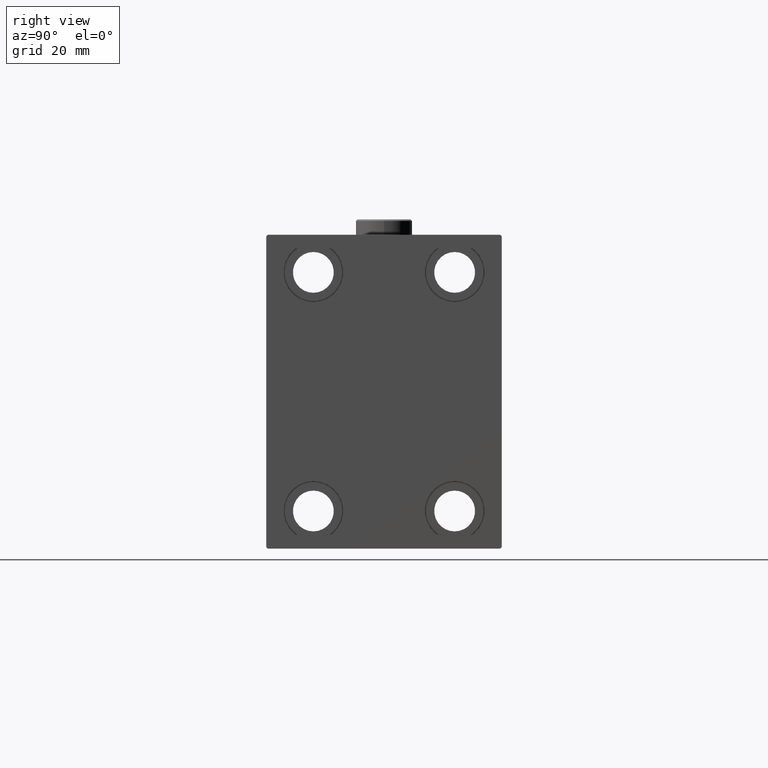
[diagram: clean part render]
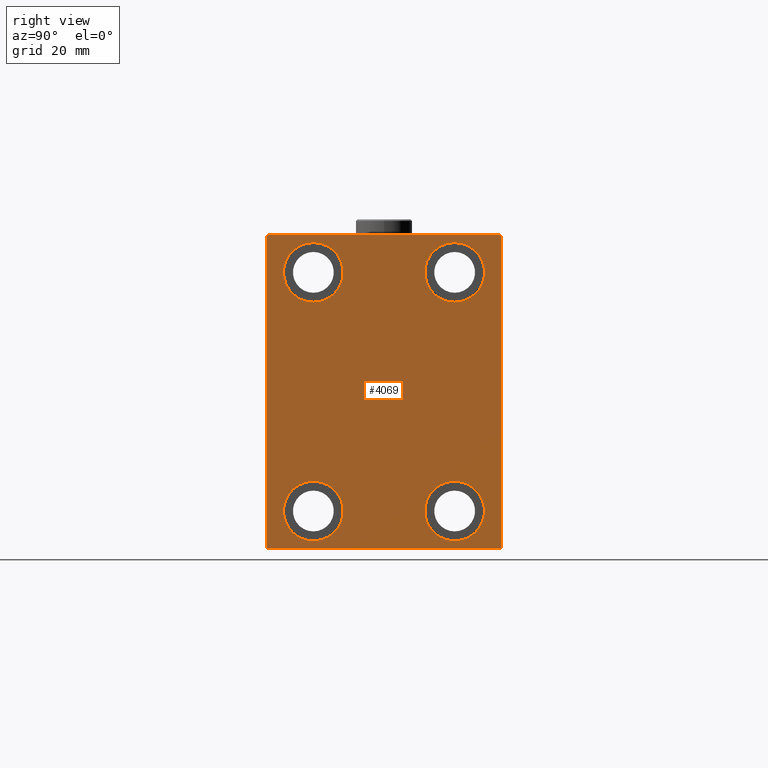
[diagram: same view with one face highlighted and labeled with its STEP entity id]
A machine part, right view. The second image highlights one B-rep face of the part: STEP entity #4069.
In plain terms, the highlighted planar face has unit normal (1, 0, 0).
Its self-contained STEP definition (entity closure, byte-faithful):
#128 = EDGE_CURVE ( 'NONE', #29008, #43041, #46919, .T. ) ;
#244 = CARTESIAN_POINT ( 'NONE',  ( 98.00000000000000000, 37.49999999999999289, 50.00000000000000711 ) ) ;
#664 = CARTESIAN_POINT ( 'NONE',  ( 98.00000000000000000, 22.50000000000000355, 28.49999999999998934 ) ) ;
#739 = VERTEX_POINT ( 'NONE', #2795 ) ;
#882 = AXIS2_PLACEMENT_3D ( 'NONE', #44903, #20198, #42136 ) ;
#1174 = ORIENTED_EDGE ( 'NONE', *, *, #28732, .T. ) ;
#1237 = VERTEX_POINT ( 'NONE', #15532 ) ;
#1420 = VECTOR ( 'NONE', #26683, 1000.000000000000000 ) ;
#1691 = LINE ( 'NONE', #4402, #5520 ) ;
#1741 = DIRECTION ( 'NONE',  ( -1.000000000000000000, -0.000000000000000000, -0.000000000000000000 ) ) ;
#2293 = EDGE_CURVE ( 'NONE', #48159, #23171, #11941, .T. ) ;
#2633 = DIRECTION ( 'NONE',  ( -0.000000000000000000, 0.7071067811865474617, 0.7071067811865474617 ) ) ;
#2655 = LINE ( 'NONE', #10679, #40913 ) ;
#2795 = CARTESIAN_POINT ( 'NONE',  ( 98.00000000000000000, 22.50000000000000355, 47.49999999999999289 ) ) ;
#3140 = EDGE_CURVE ( 'NONE', #43041, #29008, #38434, .T. ) ;
#3484 = AXIS2_PLACEMENT_3D ( 'NONE', #37922, #19168, #44996 ) ;
#3808 = VERTEX_POINT ( 'NONE', #24890 ) ;
#3815 = CARTESIAN_POINT ( 'NONE',  ( 98.00000000000000000, 22.50000000000000355, 37.99999999999999289 ) ) ;
#4069 = ADVANCED_FACE ( 'NONE', ( #4562, #30349, #15279, #40855, #23277 ), #41098, .T. ) ;
#4402 = CARTESIAN_POINT ( 'NONE',  ( 98.00000000000000000, -43.49999999999998579, 43.49999999999998579 ) ) ;
#4412 = EDGE_LOOP ( 'NONE', ( #44964, #32416 ) ) ;
#4562 = FACE_BOUND ( 'NONE', #19983, .T. ) ;
#5520 = VECTOR ( 'NONE', #11925, 1000.000000000000114 ) ;
#5964 = ORIENTED_EDGE ( 'NONE', *, *, #32897, .T. ) ;
#6424 = AXIS2_PLACEMENT_3D ( 'NONE', #10150, #17201, #11047 ) ;
#6807 = CARTESIAN_POINT ( 'NONE',  ( 98.00000000000000000, -22.50000000000000711, -47.49999999999999289 ) ) ;
#7962 = DIRECTION ( 'NONE',  ( 0.000000000000000000, 0.000000000000000000, 1.000000000000000000 ) ) ;
#9378 = VERTEX_POINT ( 'NONE', #16987 ) ;
#10150 = CARTESIAN_POINT ( 'NONE',  ( 98.00000000000000000, 22.50000000000000355, 37.99999999999999289 ) ) ;
#10391 = CARTESIAN_POINT ( 'NONE',  ( 98.00000000000000000, 37.50000000000000711, -50.00000000000000000 ) ) ;
#10600 = AXIS2_PLACEMENT_3D ( 'NONE', #16827, #1741, #34854 ) ;
#10679 = CARTESIAN_POINT ( 'NONE',  ( 98.00000000000000000, -37.50000000000000711, -50.00000000000000711 ) ) ;
#11047 = DIRECTION ( 'NONE',  ( 0.000000000000000000, 0.000000000000000000, 1.000000000000000000 ) ) ;
#11588 = CARTESIAN_POINT ( 'NONE',  ( 98.00000000000000000, 22.49999999999999645, -28.49999999999998934 ) ) ;
#11925 = DIRECTION ( 'NONE',  ( 0.000000000000000000, -0.7071067811865474617, -0.7071067811865474617 ) ) ;
#11941 = CIRCLE ( 'NONE', #15039, 9.500000000000001776 ) ;
#12075 = CARTESIAN_POINT ( 'NONE',  ( 98.00000000000000000, 22.49999999999999645, -37.99999999999999289 ) ) ;
#12117 = VERTEX_POINT ( 'NONE', #16469 ) ;
#13047 = EDGE_CURVE ( 'NONE', #739, #25322, #43632, .T. ) ;
#14103 = LINE ( 'NONE', #244, #1420 ) ;
#15039 = AXIS2_PLACEMENT_3D ( 'NONE', #12075, #34474, #31522 ) ;
#15279 = FACE_BOUND ( 'NONE', #4412, .T. ) ;
#15532 = CARTESIAN_POINT ( 'NONE',  ( 98.00000000000000000, 37.50000000000000711, -49.50000000000000000 ) ) ;
#16469 = CARTESIAN_POINT ( 'NONE',  ( 98.00000000000000000, -36.99999999999999289, 49.99999999999999289 ) ) ;
#16729 = LINE ( 'NONE', #34763, #23508 ) ;
#16827 = CARTESIAN_POINT ( 'NONE',  ( 98.00000000000000000, -22.50000000000000711, -37.99999999999999289 ) ) ;
#16987 = CARTESIAN_POINT ( 'NONE',  ( 98.00000000000000000, 37.49999999999999289, 49.50000000000000000 ) ) ;
#17201 = DIRECTION ( 'NONE',  ( -1.000000000000000000, -0.000000000000000000, -0.000000000000000000 ) ) ;
#17721 = LINE ( 'NONE', #46474, #20547 ) ;
#18005 = CIRCLE ( 'NONE', #28100, 9.500000000000001776 ) ;
#18840 = DIRECTION ( 'NONE',  ( -0.000000000000000000, -0.7071067811865425767, 0.7071067811865525687 ) ) ;
#18970 = VECTOR ( 'NONE', #18840, 999.9999999999998863 ) ;
#19140 = CIRCLE ( 'NONE', #10600, 9.500000000000001776 ) ;
#19158 = CARTESIAN_POINT ( 'NONE',  ( 98.00000000000000000, 22.49999999999999645, -37.99999999999999289 ) ) ;
#19168 = DIRECTION ( 'NONE',  ( 1.000000000000000000, 0.000000000000000000, 0.000000000000000000 ) ) ;
#19211 = EDGE_LOOP ( 'NONE', ( #39998, #37008, #43684, #40436, #5964, #32328, #1174, #41318 ) ) ;
#19421 = DIRECTION ( 'NONE',  ( -0.000000000000000000, 0.7071067811865474617, -0.7071067811865474617 ) ) ;
#19507 = CARTESIAN_POINT ( 'NONE',  ( 98.00000000000000000, 22.49999999999999645, -47.49999999999999289 ) ) ;
#19535 = VERTEX_POINT ( 'NONE', #41088 ) ;
#19983 = EDGE_LOOP ( 'NONE', ( #36929, #35291 ) ) ;
#20093 = CARTESIAN_POINT ( 'NONE',  ( 98.00000000000000000, -36.99999999999999289, -50.00000000000000711 ) ) ;
#20198 = DIRECTION ( 'NONE',  ( -1.000000000000000000, -0.000000000000000000, -0.000000000000000000 ) ) ;
#20443 = AXIS2_PLACEMENT_3D ( 'NONE', #34463, #41066, #37412 ) ;
#20547 = VECTOR ( 'NONE', #2633, 1000.000000000000114 ) ;
#20726 = VERTEX_POINT ( 'NONE', #6807 ) ;
#20881 = EDGE_CURVE ( 'NONE', #32735, #37528, #16729, .T. ) ;
#20957 = EDGE_CURVE ( 'NONE', #25322, #739, #27395, .T. ) ;
#21941 = VERTEX_POINT ( 'NONE', #27146 ) ;
#22284 = LINE ( 'NONE', #25921, #23453 ) ;
#23171 = VERTEX_POINT ( 'NONE', #11588 ) ;
#23277 = FACE_OUTER_BOUND ( 'NONE', #19211, .T. ) ;
#23453 = VECTOR ( 'NONE', #37385, 1000.000000000000000 ) ;
#23508 = VECTOR ( 'NONE', #19421, 1000.000000000000114 ) ;
#23588 = CARTESIAN_POINT ( 'NONE',  ( 98.00000000000000000, -37.50000000000000711, -49.49999999999999289 ) ) ;
#24180 = EDGE_CURVE ( 'NONE', #9378, #46353, #44909, .T. ) ;
#24519 = CARTESIAN_POINT ( 'NONE',  ( 98.00000000000000000, -22.49999999999999645, 37.99999999999999289 ) ) ;
#24890 = CARTESIAN_POINT ( 'NONE',  ( 98.00000000000000000, -22.50000000000000711, -28.49999999999998934 ) ) ;
#25149 = EDGE_CURVE ( 'NONE', #19535, #1237, #17721, .T. ) ;
#25322 = VERTEX_POINT ( 'NONE', #664 ) ;
#25469 = LINE ( 'NONE', #10391, #37027 ) ;
#25921 = CARTESIAN_POINT ( 'NONE',  ( 98.00000000000000000, -37.50000000000000711, 49.99999999999999289 ) ) ;
#26371 = CARTESIAN_POINT ( 'NONE',  ( 98.00000000000000000, 43.50000000000026290, 43.49999999999965894 ) ) ;
#26683 = DIRECTION ( 'NONE',  ( 0.000000000000000000, -1.000000000000000000, -1.850371707708594316E-16 ) ) ;
#27146 = CARTESIAN_POINT ( 'NONE',  ( 98.00000000000000000, -37.50000000000000711, 49.49999999999997868 ) ) ;
#27395 = CIRCLE ( 'NONE', #6424, 9.500000000000001776 ) ;
#27496 = AXIS2_PLACEMENT_3D ( 'NONE', #24519, #42096, #45999 ) ;
#28065 = ORIENTED_EDGE ( 'NONE', *, *, #3140, .T. ) ;
#28100 = AXIS2_PLACEMENT_3D ( 'NONE', #19158, #41321, #7962 ) ;
#28330 = EDGE_LOOP ( 'NONE', ( #34752, #28065 ) ) ;
#28732 = EDGE_CURVE ( 'NONE', #1237, #9378, #25469, .T. ) ;
#29008 = VERTEX_POINT ( 'NONE', #46389 ) ;
#30349 = FACE_BOUND ( 'NONE', #28330, .T. ) ;
#31522 = DIRECTION ( 'NONE',  ( 0.000000000000000000, 0.000000000000000000, 1.000000000000000000 ) ) ;
#32328 = ORIENTED_EDGE ( 'NONE', *, *, #25149, .T. ) ;
#32416 = ORIENTED_EDGE ( 'NONE', *, *, #13047, .T. ) ;
#32453 = EDGE_CURVE ( 'NONE', #20726, #3808, #19140, .T. ) ;
#32735 = VERTEX_POINT ( 'NONE', #23588 ) ;
#32897 = EDGE_CURVE ( 'NONE', #37528, #19535, #2655, .T. ) ;
#34463 = CARTESIAN_POINT ( 'NONE',  ( 98.00000000000000000, -22.49999999999999645, 37.99999999999999289 ) ) ;
#34474 = DIRECTION ( 'NONE',  ( -1.000000000000000000, -0.000000000000000000, -0.000000000000000000 ) ) ;
#34752 = ORIENTED_EDGE ( 'NONE', *, *, #128, .T. ) ;
#34763 = CARTESIAN_POINT ( 'NONE',  ( 98.00000000000000000, -43.50000000000000000, -43.50000000000000000 ) ) ;
#34854 = DIRECTION ( 'NONE',  ( 0.000000000000000000, 0.000000000000000000, 1.000000000000000000 ) ) ;
#35291 = ORIENTED_EDGE ( 'NONE', *, *, #43434, .T. ) ;
#36929 = ORIENTED_EDGE ( 'NONE', *, *, #2293, .T. ) ;
#37008 = ORIENTED_EDGE ( 'NONE', *, *, #47254, .T. ) ;
#37027 = VECTOR ( 'NONE', #43513, 1000.000000000000000 ) ;
#37385 = DIRECTION ( 'NONE',  ( 0.000000000000000000, 0.000000000000000000, -1.000000000000000000 ) ) ;
#37412 = DIRECTION ( 'NONE',  ( 0.000000000000000000, 0.000000000000000000, 1.000000000000000000 ) ) ;
#37528 = VERTEX_POINT ( 'NONE', #20093 ) ;
#37922 = CARTESIAN_POINT ( 'NONE',  ( 98.00000000000000000, 0.000000000000000000, 0.000000000000000000 ) ) ;
#38319 = EDGE_CURVE ( 'NONE', #46353, #12117, #14103, .T. ) ;
#38434 = CIRCLE ( 'NONE', #27496, 9.500000000000001776 ) ;
#39998 = ORIENTED_EDGE ( 'NONE', *, *, #38319, .T. ) ;
#40436 = ORIENTED_EDGE ( 'NONE', *, *, #20881, .T. ) ;
#40855 = FACE_BOUND ( 'NONE', #46216, .T. ) ;
#40913 = VECTOR ( 'NONE', #47459, 1000.000000000000000 ) ;
#41066 = DIRECTION ( 'NONE',  ( -1.000000000000000000, -0.000000000000000000, -0.000000000000000000 ) ) ;
#41088 = CARTESIAN_POINT ( 'NONE',  ( 98.00000000000000000, 37.00000000000000711, -50.00000000000000000 ) ) ;
#41098 = PLANE ( 'NONE',  #3484 ) ;
#41318 = ORIENTED_EDGE ( 'NONE', *, *, #24180, .T. ) ;
#41321 = DIRECTION ( 'NONE',  ( -1.000000000000000000, -0.000000000000000000, -0.000000000000000000 ) ) ;
#41547 = ORIENTED_EDGE ( 'NONE', *, *, #46330, .T. ) ;
#42096 = DIRECTION ( 'NONE',  ( -1.000000000000000000, -0.000000000000000000, -0.000000000000000000 ) ) ;
#42136 = DIRECTION ( 'NONE',  ( 0.000000000000000000, 0.000000000000000000, 1.000000000000000000 ) ) ;
#42379 = CARTESIAN_POINT ( 'NONE',  ( 98.00000000000000000, 36.99999999999999289, 50.00000000000000711 ) ) ;
#42813 = AXIS2_PLACEMENT_3D ( 'NONE', #3815, #44471, #47648 ) ;
#43041 = VERTEX_POINT ( 'NONE', #43598 ) ;
#43434 = EDGE_CURVE ( 'NONE', #23171, #48159, #18005, .T. ) ;
#43513 = DIRECTION ( 'NONE',  ( 0.000000000000000000, -1.387778780781445676E-16, 1.000000000000000000 ) ) ;
#43598 = CARTESIAN_POINT ( 'NONE',  ( 98.00000000000000000, -22.49999999999999645, 47.49999999999999289 ) ) ;
#43632 = CIRCLE ( 'NONE', #42813, 9.500000000000001776 ) ;
#43684 = ORIENTED_EDGE ( 'NONE', *, *, #44594, .T. ) ;
#44471 = DIRECTION ( 'NONE',  ( -1.000000000000000000, -0.000000000000000000, -0.000000000000000000 ) ) ;
#44594 = EDGE_CURVE ( 'NONE', #21941, #32735, #22284, .T. ) ;
#44903 = CARTESIAN_POINT ( 'NONE',  ( 98.00000000000000000, -22.50000000000000711, -37.99999999999999289 ) ) ;
#44909 = LINE ( 'NONE', #26371, #18970 ) ;
#44964 = ORIENTED_EDGE ( 'NONE', *, *, #20957, .T. ) ;
#44996 = DIRECTION ( 'NONE',  ( 0.000000000000000000, 0.000000000000000000, -1.000000000000000000 ) ) ;
#45896 = ORIENTED_EDGE ( 'NONE', *, *, #32453, .T. ) ;
#45999 = DIRECTION ( 'NONE',  ( 0.000000000000000000, 0.000000000000000000, 1.000000000000000000 ) ) ;
#46216 = EDGE_LOOP ( 'NONE', ( #45896, #41547 ) ) ;
#46330 = EDGE_CURVE ( 'NONE', #3808, #20726, #47537, .T. ) ;
#46353 = VERTEX_POINT ( 'NONE', #42379 ) ;
#46389 = CARTESIAN_POINT ( 'NONE',  ( 98.00000000000000000, -22.49999999999999645, 28.49999999999998934 ) ) ;
#46474 = CARTESIAN_POINT ( 'NONE',  ( 98.00000000000000000, 43.50000000000000711, -43.50000000000000711 ) ) ;
#46919 = CIRCLE ( 'NONE', #20443, 9.500000000000001776 ) ;
#47254 = EDGE_CURVE ( 'NONE', #12117, #21941, #1691, .T. ) ;
#47459 = DIRECTION ( 'NONE',  ( 0.000000000000000000, 1.000000000000000000, 9.251858538542970348E-17 ) ) ;
#47537 = CIRCLE ( 'NONE', #882, 9.500000000000001776 ) ;
#47648 = DIRECTION ( 'NONE',  ( 0.000000000000000000, 0.000000000000000000, 1.000000000000000000 ) ) ;
#48159 = VERTEX_POINT ( 'NONE', #19507 ) ;